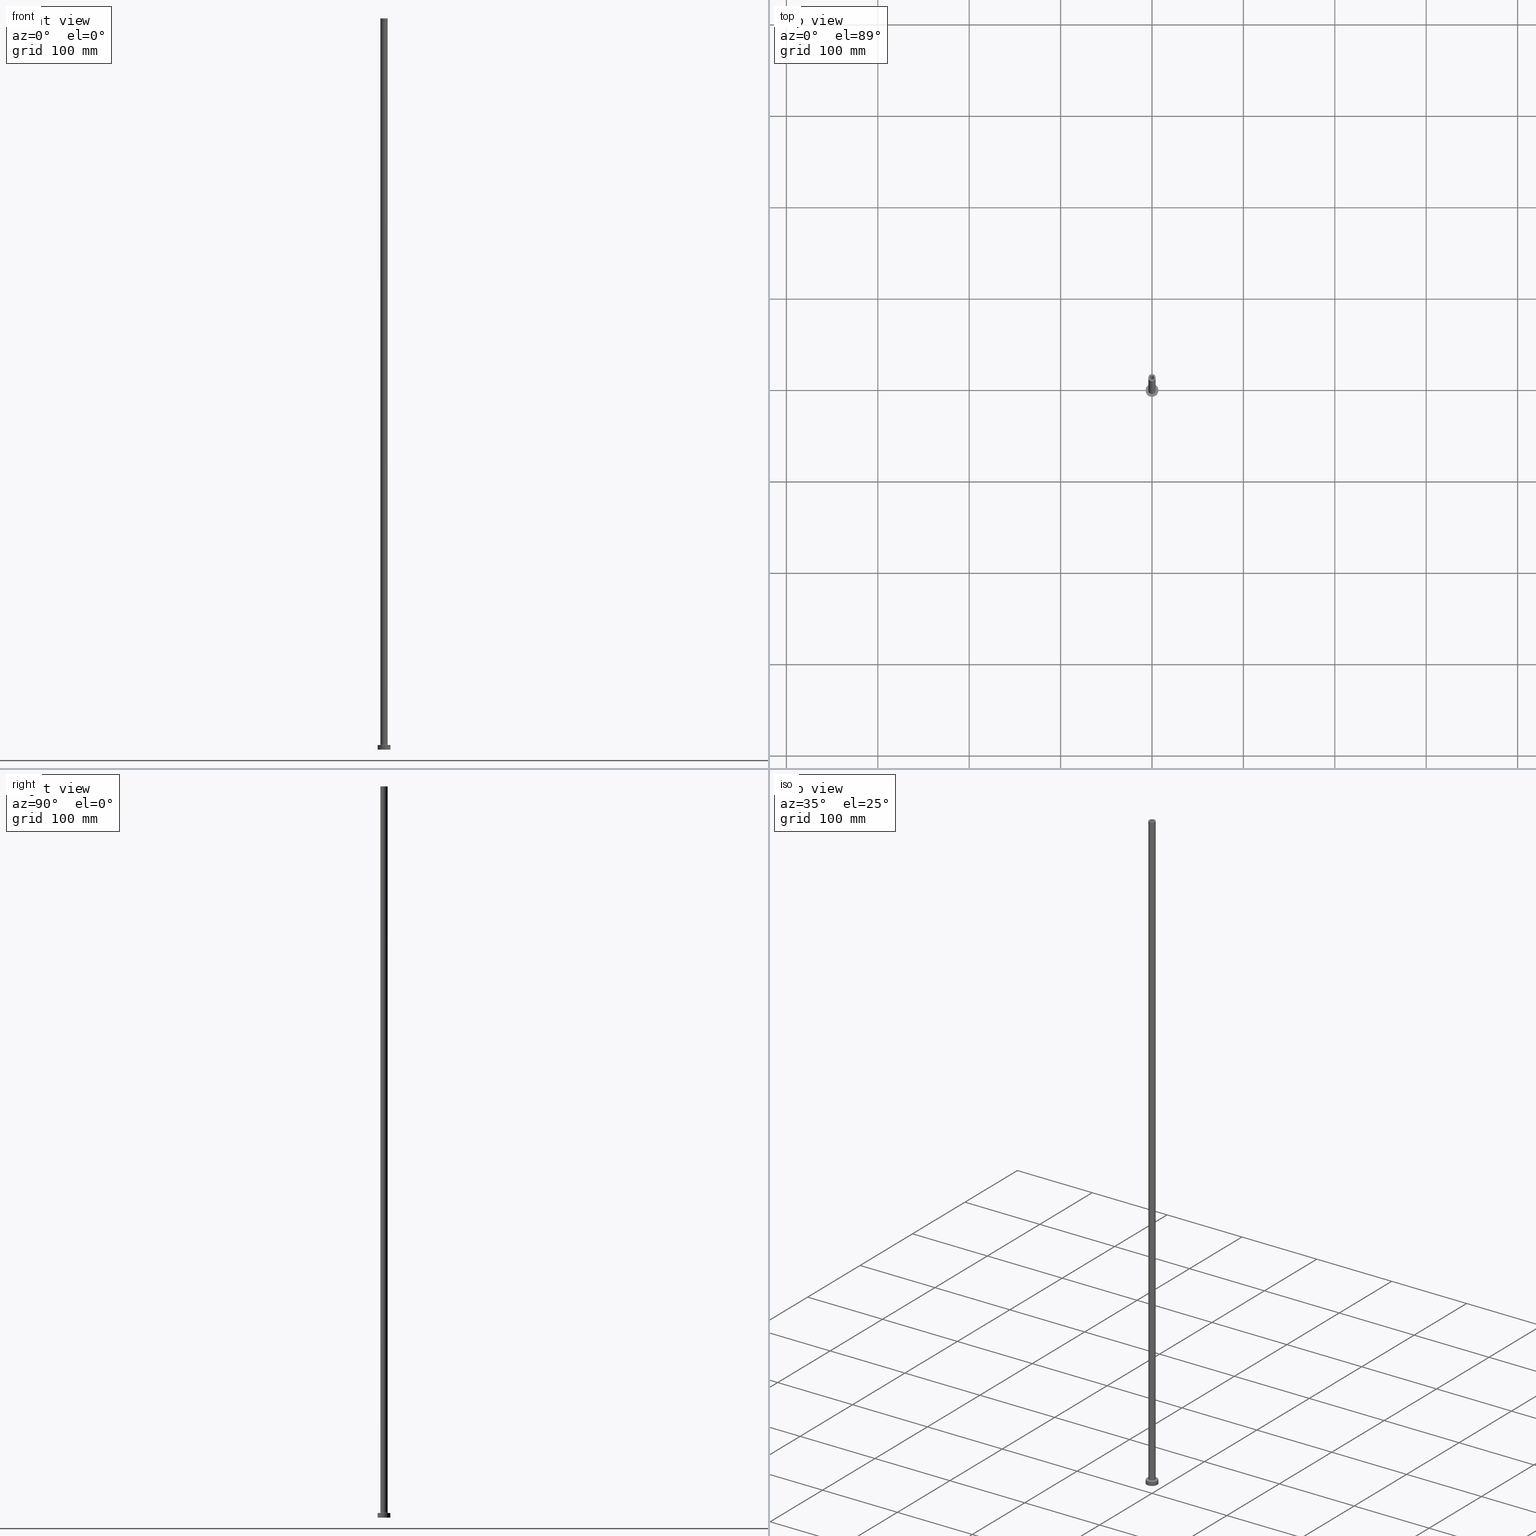
[diagram: canonical four-view strip — front | top / right | iso, engineering-drawing reading convention]
A machine part, canonical four-view strip (front | top / right | iso — engineering-drawing reading convention). The complete STEP part file that produces these views, byte-faithful:
ISO-10303-21;
HEADER;
FILE_DESCRIPTION (( 'STEP AP203' ),
    '1' );
FILE_NAME ('ecbd.STEP',
    '2023-02-13T17:19:08',
    ( '' ),
    ( '' ),
    'SwSTEP 2.0',
    'SolidWorks 2019',
    '' );
FILE_SCHEMA (( 'CONFIG_CONTROL_DESIGN' ));
ENDSEC;

DATA;
#1 = ORIENTED_EDGE ( 'NONE', *, *, #241, .T. ) ;
#2 = CYLINDRICAL_SURFACE ( 'NONE', #187, 4.000000000000000000 ) ;
#3 = CYLINDRICAL_SURFACE ( 'NONE', #51, 2.250000000000000000 ) ;
#4 = DIRECTION ( 'NONE',  ( -0.000000000000000000, -0.000000000000000000, -1.000000000000000000 ) ) ;
#5 = AXIS2_PLACEMENT_3D ( 'NONE', #430, #105, #152 ) ;
#6 = AXIS2_PLACEMENT_3D ( 'NONE', #403, #371, #92 ) ;
#7 = DIRECTION ( 'NONE',  ( -0.000000000000000000, -0.000000000000000000, -1.000000000000000000 ) ) ;
#8 = PRODUCT_DEFINITION_FORMATION_WITH_SPECIFIED_SOURCE ( 'LIBOVOLN�', '', #119, .NOT_KNOWN. ) ;
#9 = EDGE_CURVE ( 'NONE', #126, #253, #351, .T. ) ;
#10 = DIRECTION ( 'NONE',  ( 1.000000000000000000, 0.000000000000000000, 0.000000000000000000 ) ) ;
#11 = CARTESIAN_POINT ( 'NONE',  ( 0.000000000000000000, 0.000000000000000000, 800.0000000000000000 ) ) ;
#12 = ORIENTED_EDGE ( 'NONE', *, *, #332, .T. ) ;
#13 = DIRECTION ( 'NONE',  ( 0.000000000000000000, 0.000000000000000000, -1.000000000000000000 ) ) ;
#14 = CARTESIAN_POINT ( 'NONE',  ( -7.000000000000000000, 0.000000000000000000, 0.000000000000000000 ) ) ;
#15 = VECTOR ( 'NONE', #449, 1000.000000000000000 ) ;
#16 = CC_DESIGN_SECURITY_CLASSIFICATION ( #91, ( #8 ) ) ;
#17 = DIRECTION ( 'NONE',  ( 0.000000000000000000, 0.000000000000000000, 1.000000000000000000 ) ) ;
#18 = CIRCLE ( 'NONE', #413, 2.250000000000000000 ) ;
#19 = DIRECTION ( 'NONE',  ( 1.000000000000000000, 0.000000000000000000, 0.000000000000000000 ) ) ;
#20 = CARTESIAN_POINT ( 'NONE',  ( 0.000000000000000000, 0.000000000000000000, 5.000000000000000000 ) ) ;
#21 = AXIS2_PLACEMENT_3D ( 'NONE', #104, #163, #311 ) ;
#22 = CALENDAR_DATE ( 2023, 13, 2 ) ;
#23 = DIRECTION ( 'NONE',  ( 0.000000000000000000, 0.000000000000000000, 1.000000000000000000 ) ) ;
#24 = DIRECTION ( 'NONE',  ( 1.000000000000000000, 0.000000000000000000, 0.000000000000000000 ) ) ;
#25 = CARTESIAN_POINT ( 'NONE',  ( -4.500000000000000888, 5.510910596163088569E-16, 4.999999999999975131 ) ) ;
#26 = CC_DESIGN_DATE_AND_TIME_ASSIGNMENT ( #399, #84, ( #183 ) ) ;
#27 = DIRECTION ( 'NONE',  ( -0.000000000000000000, -0.000000000000000000, -1.000000000000000000 ) ) ;
#28 = PERSON_AND_ORGANIZATION_ROLE ( 'design_owner' ) ;
#29 = CARTESIAN_POINT ( 'NONE',  ( 2.250000000000000000, 2.755455298081544285E-16, 755.0000000000000000 ) ) ;
#30 = EDGE_LOOP ( 'NONE', ( #141, #349 ) ) ;
#31 = EDGE_CURVE ( 'NONE', #253, #126, #277, .T. ) ;
#32 = CIRCLE ( 'NONE', #199, 4.000000000000000000 ) ;
#33 = AXIS2_PLACEMENT_3D ( 'NONE', #439, #23, #366 ) ;
#34 = DIRECTION ( 'NONE',  ( 0.000000000000000000, 0.000000000000000000, -1.000000000000000000 ) ) ;
#35 = PLANE ( 'NONE',  #384 ) ;
#36 = CARTESIAN_POINT ( 'NONE',  ( 4.000000000000000000, 4.898587196589412829E-16, 5.499999999999949374 ) ) ;
#37 = EDGE_CURVE ( 'NONE', #357, #170, #453, .T. ) ;
#38 = AXIS2_PLACEMENT_3D ( 'NONE', #343, #459, #410 ) ;
#39 = AXIS2_PLACEMENT_3D ( 'NONE', #178, #423, #98 ) ;
#40 = ORIENTED_EDGE ( 'NONE', *, *, #268, .T. ) ;
#41 = EDGE_LOOP ( 'NONE', ( #174, #54, #1, #388 ) ) ;
#42 = DIRECTION ( 'NONE',  ( 1.000000000000000000, 0.000000000000000000, 0.000000000000000000 ) ) ;
#43 = DIRECTION ( 'NONE',  ( 0.000000000000000000, 0.000000000000000000, 1.000000000000000000 ) ) ;
#44 = EDGE_CURVE ( 'NONE', #354, #138, #18, .T. ) ;
#45 = EDGE_LOOP ( 'NONE', ( #244, #234 ) ) ;
#46 = CIRCLE ( 'NONE', #327, 2.250000000000000000 ) ;
#47 = DIRECTION ( 'NONE',  ( 0.000000000000000000, 0.000000000000000000, 1.000000000000000000 ) ) ;
#48 = PLANE ( 'NONE',  #300 ) ;
#49 = DIRECTION ( 'NONE',  ( 1.000000000000000000, 0.000000000000000000, 0.000000000000000000 ) ) ;
#50 = DIRECTION ( 'NONE',  ( -1.000000000000000000, 0.000000000000000000, 0.000000000000000000 ) ) ;
#51 = AXIS2_PLACEMENT_3D ( 'NONE', #127, #34, #286 ) ;
#52 = APPROVAL_STATUS ( 'not_yet_approved' ) ;
#53 = EDGE_CURVE ( 'NONE', #232, #397, #166, .T. ) ;
#54 = ORIENTED_EDGE ( 'NONE', *, *, #167, .T. ) ;
#55 = CIRCLE ( 'NONE', #132, 7.000000000000000000 ) ;
#56 = MECHANICAL_CONTEXT ( 'NONE', #288, 'mechanical' ) ;
#57 = DIRECTION ( 'NONE',  ( 0.000000000000000000, 0.000000000000000000, 1.000000000000000000 ) ) ;
#58 = ORIENTED_EDGE ( 'NONE', *, *, #230, .F. ) ;
#59 = APPROVAL_STATUS ( 'not_yet_approved' ) ;
#60 = PRODUCT_RELATED_PRODUCT_CATEGORY ( 'detail', '', ( #119 ) ) ;
#61 = DIRECTION ( 'NONE',  ( 0.000000000000000000, 0.000000000000000000, 1.000000000000000000 ) ) ;
#62 = AXIS2_PLACEMENT_3D ( 'NONE', #81, #323, #221 ) ;
#63 = APPLICATION_CONTEXT ( 'configuration controlled 3d designs of mechanical parts and assemblies' ) ;
#64 = SHAPE_DEFINITION_REPRESENTATION ( #228, #173 ) ;
#65 = ORIENTED_EDGE ( 'NONE', *, *, #345, .F. ) ;
#66 = ADVANCED_FACE ( 'NONE', ( #415 ), #194, .T. ) ;
#67 = SECURITY_CLASSIFICATION_LEVEL ( 'unclassified' ) ;
#68 = AXIS2_PLACEMENT_3D ( 'NONE', #303, #446, #273 ) ;
#69 = CARTESIAN_POINT ( 'NONE',  ( 0.000000000000000000, 0.000000000000000000, 0.000000000000000000 ) ) ;
#70 = ORIENTED_EDGE ( 'NONE', *, *, #241, .F. ) ;
#71 = DIRECTION ( 'NONE',  ( -0.000000000000000000, -0.000000000000000000, -1.000000000000000000 ) ) ;
#72 = AXIS2_PLACEMENT_3D ( 'NONE', #246, #71, #42 ) ;
#73 = DIRECTION ( 'NONE',  ( -0.000000000000000000, -0.000000000000000000, -1.000000000000000000 ) ) ;
#74 = ORIENTED_EDGE ( 'NONE', *, *, #418, .T. ) ;
#75 = CARTESIAN_POINT ( 'NONE',  ( 4.500000000000000888, 0.000000000000000000, 4.999999999999975131 ) ) ;
#76 = DIRECTION ( 'NONE',  ( 0.000000000000000000, 0.000000000000000000, 1.000000000000000000 ) ) ;
#77 = ORIENTED_EDGE ( 'NONE', *, *, #418, .F. ) ;
#78 = DIRECTION ( 'NONE',  ( 0.000000000000000000, 0.000000000000000000, 1.000000000000000000 ) ) ;
#79 = APPROVAL_PERSON_ORGANIZATION ( #156, #460, #330 ) ;
#80 = CYLINDRICAL_SURFACE ( 'NONE', #123, 2.399999999999999911 ) ;
#81 = CARTESIAN_POINT ( 'NONE',  ( 0.000000000000000000, 0.000000000000000000, 800.0000000000000000 ) ) ;
#82 = ADVANCED_FACE ( 'NONE', ( #209, #346 ), #35, .F. ) ;
#83 = CARTESIAN_POINT ( 'NONE',  ( 0.000000000000000000, 0.000000000000000000, 800.0000000000000000 ) ) ;
#84 = DATE_TIME_ROLE ( 'creation_date' ) ;
#85 = VECTOR ( 'NONE', #263, 1000.000000000000000 ) ;
#86 = CARTESIAN_POINT ( 'NONE',  ( 0.000000000000000000, 0.000000000000000000, 5.499999999999949374 ) ) ;
#87 = ADVANCED_FACE ( 'NONE', ( #135 ), #168, .F. ) ;
#88 = PERSON_AND_ORGANIZATION ( #337, #408 ) ;
#89 = ORIENTED_EDGE ( 'NONE', *, *, #130, .F. ) ;
#90 = DIRECTION ( 'NONE',  ( 0.000000000000000000, 0.000000000000000000, -1.000000000000000000 ) ) ;
#91 = SECURITY_CLASSIFICATION ( '', '', #67 ) ;
#92 = DIRECTION ( 'NONE',  ( 1.000000000000000000, 0.000000000000000000, -0.000000000000000000 ) ) ;
#93 = EDGE_CURVE ( 'NONE', #148, #216, #429, .T. ) ;
#94 = VECTOR ( 'NONE', #184, 1000.000000000000000 ) ;
#95 = CC_DESIGN_APPROVAL ( #460, ( #183 ) ) ;
#96 = CC_DESIGN_PERSON_AND_ORGANIZATION_ASSIGNMENT ( #401, #111, ( #183 ) ) ;
#97 = CARTESIAN_POINT ( 'NONE',  ( -4.000000000000000000, 0.000000000000000000, 800.0000000000000000 ) ) ;
#98 = DIRECTION ( 'NONE',  ( 1.000000000000000000, 0.000000000000000000, 0.000000000000000000 ) ) ;
#99 = ORIENTED_EDGE ( 'NONE', *, *, #167, .F. ) ;
#100 = ADVANCED_FACE ( 'NONE', ( #192 ), #3, .F. ) ;
#101 = CIRCLE ( 'NONE', #207, 0.5000000000000004441 ) ;
#102 = CARTESIAN_POINT ( 'NONE',  ( 0.000000000000000000, 0.000000000000000000, 800.0000000000000000 ) ) ;
#103 = ORIENTED_EDGE ( 'NONE', *, *, #299, .F. ) ;
#104 = CARTESIAN_POINT ( 'NONE',  ( 0.000000000000000000, 0.000000000000000000, 5.000000000000000000 ) ) ;
#105 = DIRECTION ( 'NONE',  ( 0.000000000000000000, 0.000000000000000000, 1.000000000000000000 ) ) ;
#106 = ORIENTED_EDGE ( 'NONE', *, *, #159, .F. ) ;
#107 = CARTESIAN_POINT ( 'NONE',  ( -2.250000000000000000, 0.000000000000000000, 800.0000000000000000 ) ) ;
#108 = CARTESIAN_POINT ( 'NONE',  ( 2.250000000000000000, 2.755455298081544285E-16, 800.0000000000000000 ) ) ;
#109 = EDGE_CURVE ( 'NONE', #339, #307, #267, .T. ) ;
#110 = CARTESIAN_POINT ( 'NONE',  ( 0.000000000000000000, 0.000000000000000000, 761.7882250993909565 ) ) ;
#111 = PERSON_AND_ORGANIZATION_ROLE ( 'creator' ) ;
#112 = ADVANCED_FACE ( 'NONE', ( #256 ), #368, .F. ) ;
#113 = DATE_AND_TIME ( #22, #162 ) ;
#114 = CIRCLE ( 'NONE', #38, 7.000000000000000000 ) ;
#115 = ORIENTED_EDGE ( 'NONE', *, *, #299, .T. ) ;
#116 = CYLINDRICAL_SURFACE ( 'NONE', #276, 2.399999999999999911 ) ;
#117 = ORIENTED_EDGE ( 'NONE', *, *, #31, .T. ) ;
#118 = DIRECTION ( 'NONE',  ( -1.000000000000000000, 0.000000000000000000, 0.000000000000000000 ) ) ;
#119 = PRODUCT ( 'ecbd', 'ecbd', '', ( #56 ) ) ;
#120 = DIRECTION ( 'NONE',  ( -0.000000000000000000, -0.000000000000000000, -1.000000000000000000 ) ) ;
#121 = ORIENTED_EDGE ( 'NONE', *, *, #31, .F. ) ;
#122 = APPROVAL ( #316, 'NEUR�EN�' ) ;
#123 = AXIS2_PLACEMENT_3D ( 'NONE', #110, #13, #222 ) ;
#124 = APPROVAL_PERSON_ORGANIZATION ( #365, #155, #191 ) ;
#125 = DIRECTION ( 'NONE',  ( 1.000000000000000000, 0.000000000000000000, -0.000000000000000000 ) ) ;
#126 = VERTEX_POINT ( 'NONE', #329 ) ;
#127 = CARTESIAN_POINT ( 'NONE',  ( 0.000000000000000000, 0.000000000000000000, 800.0000000000000000 ) ) ;
#128 = ORIENTED_EDGE ( 'NONE', *, *, #374, .F. ) ;
#129 = VERTEX_POINT ( 'NONE', #261 ) ;
#130 = EDGE_CURVE ( 'NONE', #216, #148, #265, .T. ) ;
#131 = COORDINATED_UNIVERSAL_TIME_OFFSET ( 1, 0, .AHEAD. ) ;
#132 = AXIS2_PLACEMENT_3D ( 'NONE', #69, #424, #139 ) ;
#133 = PERSON_AND_ORGANIZATION ( #337, #408 ) ;
#134 = CARTESIAN_POINT ( 'NONE',  ( 0.000000000000000000, 0.000000000000000000, 0.000000000000000000 ) ) ;
#135 = FACE_OUTER_BOUND ( 'NONE', #344, .T. ) ;
#136 = VERTEX_POINT ( 'NONE', #29 ) ;
#137 = DIRECTION ( 'NONE',  ( 0.000000000000000000, -1.000000000000000000, 0.000000000000000000 ) ) ;
#138 = VERTEX_POINT ( 'NONE', #238 ) ;
#139 = DIRECTION ( 'NONE',  ( 1.000000000000000000, 0.000000000000000000, 0.000000000000000000 ) ) ;
#140 = LINE ( 'NONE', #287, #448 ) ;
#141 = ORIENTED_EDGE ( 'NONE', *, *, #44, .F. ) ;
#142 = ADVANCED_FACE ( 'NONE', ( #202, #269 ), #411, .T. ) ;
#143 = DIRECTION ( 'NONE',  ( 1.000000000000000000, 0.000000000000000000, 0.000000000000000000 ) ) ;
#144 = VECTOR ( 'NONE', #260, 1000.000000000000000 ) ;
#145 = LOCAL_TIME ( 18, 19, 8.000000000000000000, #172 ) ;
#146 = EDGE_LOOP ( 'NONE', ( #454, #205, #117, #70 ) ) ;
#147 = DIRECTION ( 'NONE',  ( 0.000000000000000000, 0.000000000000000000, 1.000000000000000000 ) ) ;
#148 = VERTEX_POINT ( 'NONE', #165 ) ;
#149 = FACE_BOUND ( 'NONE', #313, .T. ) ;
#150 = EDGE_CURVE ( 'NONE', #216, #397, #101, .T. ) ;
#151 = CARTESIAN_POINT ( 'NONE',  ( -2.399999999999999911, 0.000000000000000000, 755.0000000000000000 ) ) ;
#152 = DIRECTION ( 'NONE',  ( 1.000000000000000000, 0.000000000000000000, 0.000000000000000000 ) ) ;
#153 = APPLICATION_PROTOCOL_DEFINITION ( 'international standard', 'config_control_design', 1994, #288 ) ;
#154 = AXIS2_PLACEMENT_3D ( 'NONE', #134, #4, #284 ) ;
#155 = APPROVAL ( #52, 'NEUR�EN�' ) ;
#156 = PERSON_AND_ORGANIZATION ( #337, #408 ) ;
#157 =( LENGTH_UNIT ( ) NAMED_UNIT ( * ) SI_UNIT ( .MILLI., .METRE. ) );
#158 = CIRCLE ( 'NONE', #220, 4.500000000000000888 ) ;
#159 = EDGE_CURVE ( 'NONE', #170, #357, #55, .T. ) ;
#160 = DATE_AND_TIME ( #438, #336 ) ;
#161 = CIRCLE ( 'NONE', #5, 2.250000000000000000 ) ;
#162 = LOCAL_TIME ( 18, 19, 8.000000000000000000, #331 ) ;
#163 = DIRECTION ( 'NONE',  ( -0.000000000000000000, -0.000000000000000000, -1.000000000000000000 ) ) ;
#164 = CARTESIAN_POINT ( 'NONE',  ( 0.000000000000000000, 0.000000000000000000, 5.000000000000000000 ) ) ;
#165 = CARTESIAN_POINT ( 'NONE',  ( -4.000000000000000000, 0.000000000000000000, 5.499999999999949374 ) ) ;
#166 = CIRCLE ( 'NONE', #21, 4.500000000000000888 ) ;
#167 = EDGE_CURVE ( 'NONE', #307, #339, #264, .T. ) ;
#168 = TOROIDAL_SURFACE ( 'NONE', #190, 4.500000000000000888, 0.5000000000000000000 ) ;
#169 = ORIENTED_EDGE ( 'NONE', *, *, #317, .T. ) ;
#170 = VERTEX_POINT ( 'NONE', #426 ) ;
#171 = ORIENTED_EDGE ( 'NONE', *, *, #93, .T. ) ;
#172 = COORDINATED_UNIVERSAL_TIME_OFFSET ( 1, 0, .AHEAD. ) ;
#173 = ADVANCED_BREP_SHAPE_REPRESENTATION ( 'ecbd', ( #420, #68 ), #255 ) ;
#174 = ORIENTED_EDGE ( 'NONE', *, *, #198, .F. ) ;
#175 = APPROVAL_ROLE ( '' ) ;
#176 = ADVANCED_FACE ( 'NONE', ( #402 ), #334, .T. ) ;
#177 = DIRECTION ( 'NONE',  ( 1.000000000000000000, 0.000000000000000000, 0.000000000000000000 ) ) ;
#178 = CARTESIAN_POINT ( 'NONE',  ( 0.000000000000000000, 0.000000000000000000, 0.000000000000000000 ) ) ;
#179 = CARTESIAN_POINT ( 'NONE',  ( 0.000000000000000000, 0.000000000000000000, 5.000000000000000000 ) ) ;
#180 = EDGE_LOOP ( 'NONE', ( #128, #58, #428, #203 ) ) ;
#181 = AXIS2_PLACEMENT_3D ( 'NONE', #258, #17, #296 ) ;
#182 = CARTESIAN_POINT ( 'NONE',  ( 2.399999999999999911, 2.939152317953647106E-16, 755.0000000000000000 ) ) ;
#183 = PRODUCT_DEFINITION ( 'NEZN�M�', '', #8, #233 ) ;
#184 = DIRECTION ( 'NONE',  ( 0.000000000000000000, 0.000000000000000000, -1.000000000000000000 ) ) ;
#185 = VERTEX_POINT ( 'NONE', #275 ) ;
#186 = FACE_BOUND ( 'NONE', #197, .T. ) ;
#187 = AXIS2_PLACEMENT_3D ( 'NONE', #102, #7, #50 ) ;
#188 = LINE ( 'NONE', #108, #94 ) ;
#189 = CARTESIAN_POINT ( 'NONE',  ( 2.399999999999999911, 2.939152317953647106E-16, 761.7882250993909565 ) ) ;
#190 = AXIS2_PLACEMENT_3D ( 'NONE', #86, #76, #19 ) ;
#191 = APPROVAL_ROLE ( '' ) ;
#192 = FACE_OUTER_BOUND ( 'NONE', #434, .T. ) ;
#193 = FACE_OUTER_BOUND ( 'NONE', #41, .T. ) ;
#194 = CYLINDRICAL_SURFACE ( 'NONE', #431, 7.000000000000000000 ) ;
#195 = AXIS2_PLACEMENT_3D ( 'NONE', #359, #147, #435 ) ;
#196 = ADVANCED_FACE ( 'NONE', ( #200 ), #235, .T. ) ;
#197 = EDGE_LOOP ( 'NONE', ( #74, #425 ) ) ;
#198 = EDGE_CURVE ( 'NONE', #307, #253, #224, .T. ) ;
#199 = AXIS2_PLACEMENT_3D ( 'NONE', #11, #217, #355 ) ;
#200 = FACE_OUTER_BOUND ( 'NONE', #249, .T. ) ;
#201 = LINE ( 'NONE', #97, #15 ) ;
#202 = FACE_BOUND ( 'NONE', #30, .T. ) ;
#203 = ORIENTED_EDGE ( 'NONE', *, *, #37, .T. ) ;
#204 = DIRECTION ( 'NONE',  ( -1.000000000000000000, 0.000000000000000000, 0.000000000000000000 ) ) ;
#205 = ORIENTED_EDGE ( 'NONE', *, *, #198, .T. ) ;
#206 = VERTEX_POINT ( 'NONE', #358 ) ;
#207 = AXIS2_PLACEMENT_3D ( 'NONE', #461, #137, #285 ) ;
#208 = CC_DESIGN_APPROVAL ( #122, ( #91 ) ) ;
#209 = FACE_BOUND ( 'NONE', #321, .T. ) ;
#210 = CARTESIAN_POINT ( 'NONE',  ( 0.000000000000000000, 0.000000000000000000, 755.0000000000000000 ) ) ;
#211 = EDGE_LOOP ( 'NONE', ( #412, #89, #229, #237 ) ) ;
#212 = EDGE_LOOP ( 'NONE', ( #347, #417 ) ) ;
#213 = DIRECTION ( 'NONE',  ( 1.000000000000000000, 0.000000000000000000, -0.000000000000000000 ) ) ;
#214 = EDGE_LOOP ( 'NONE', ( #259, #106 ) ) ;
#215 = CARTESIAN_POINT ( 'NONE',  ( 0.000000000000000000, 0.000000000000000000, 5.000000000000000000 ) ) ;
#216 = VERTEX_POINT ( 'NONE', #36 ) ;
#217 = DIRECTION ( 'NONE',  ( 0.000000000000000000, 0.000000000000000000, 1.000000000000000000 ) ) ;
#218 = CC_DESIGN_PERSON_AND_ORGANIZATION_ASSIGNMENT ( #338, #28, ( #119 ) ) ;
#219 = ORIENTED_EDGE ( 'NONE', *, *, #360, .T. ) ;
#220 = AXIS2_PLACEMENT_3D ( 'NONE', #20, #442, #24 ) ;
#221 = DIRECTION ( 'NONE',  ( 1.000000000000000000, 0.000000000000000000, 0.000000000000000000 ) ) ;
#222 = DIRECTION ( 'NONE',  ( -1.000000000000000000, 0.000000000000000000, 0.000000000000000000 ) ) ;
#223 = DIRECTION ( 'NONE',  ( -1.000000000000000000, 0.000000000000000000, 0.000000000000000000 ) ) ;
#224 = LINE ( 'NONE', #189, #85 ) ;
#225 = EDGE_CURVE ( 'NONE', #185, #148, #201, .T. ) ;
#226 = CIRCLE ( 'NONE', #356, 7.000000000000000000 ) ;
#227 = PERSON_AND_ORGANIZATION_ROLE ( 'creator' ) ;
#228 = PRODUCT_DEFINITION_SHAPE ( 'NONE', 'NONE',  #183 ) ;
#229 = ORIENTED_EDGE ( 'NONE', *, *, #150, .T. ) ;
#230 = EDGE_CURVE ( 'NONE', #206, #129, #114, .T. ) ;
#231 = DIRECTION ( 'NONE',  ( -0.000000000000000000, -0.000000000000000000, -1.000000000000000000 ) ) ;
#232 = VERTEX_POINT ( 'NONE', #25 ) ;
#233 = DESIGN_CONTEXT ( 'detailed design', #63, 'design' ) ;
#234 = ORIENTED_EDGE ( 'NONE', *, *, #283, .T. ) ;
#235 = CYLINDRICAL_SURFACE ( 'NONE', #436, 7.000000000000000000 ) ;
#236 = CC_DESIGN_DATE_AND_TIME_ASSIGNMENT ( #377, #314, ( #91 ) ) ;
#237 = ORIENTED_EDGE ( 'NONE', *, *, #53, .F. ) ;
#238 = CARTESIAN_POINT ( 'NONE',  ( 2.250000000000000000, 2.755455298081544285E-16, 800.0000000000000000 ) ) ;
#239 = ORIENTED_EDGE ( 'NONE', *, *, #150, .F. ) ;
#240 = DIRECTION ( 'NONE',  ( 0.000000000000000000, 0.000000000000000000, -1.000000000000000000 ) ) ;
#241 = EDGE_CURVE ( 'NONE', #339, #126, #247, .T. ) ;
#242 = CARTESIAN_POINT ( 'NONE',  ( 0.000000000000000000, 0.000000000000000000, 800.0000000000000000 ) ) ;
#243 = PERSON_AND_ORGANIZATION ( #337, #408 ) ;
#244 = ORIENTED_EDGE ( 'NONE', *, *, #398, .T. ) ;
#245 = CIRCLE ( 'NONE', #308, 0.5000000000000004441 ) ;
#246 = CARTESIAN_POINT ( 'NONE',  ( 0.000000000000000000, 0.000000000000000000, 0.000000000000000000 ) ) ;
#247 = LINE ( 'NONE', #281, #407 ) ;
#248 = LINE ( 'NONE', #322, #144 ) ;
#249 = EDGE_LOOP ( 'NONE', ( #450, #381, #278, #270 ) ) ;
#250 = EDGE_CURVE ( 'NONE', #452, #136, #46, .T. ) ;
#251 = VERTEX_POINT ( 'NONE', #294 ) ;
#252 = FACE_OUTER_BOUND ( 'NONE', #212, .T. ) ;
#253 = VERTEX_POINT ( 'NONE', #254 ) ;
#254 = CARTESIAN_POINT ( 'NONE',  ( 2.399999999999999911, 2.939152317953647106E-16, 0.000000000000000000 ) ) ;
#255 =( GEOMETRIC_REPRESENTATION_CONTEXT ( 3 ) GLOBAL_UNCERTAINTY_ASSIGNED_CONTEXT ( ( #305 ) ) GLOBAL_UNIT_ASSIGNED_CONTEXT ( ( #157, #302, #409 ) ) REPRESENTATION_CONTEXT ( 'NONE', 'WORKASPACE' ) );
#256 = FACE_OUTER_BOUND ( 'NONE', #211, .T. ) ;
#257 = LINE ( 'NONE', #107, #400 ) ;
#258 = CARTESIAN_POINT ( 'NONE',  ( 0.000000000000000000, 0.000000000000000000, 5.499999999999949374 ) ) ;
#259 = ORIENTED_EDGE ( 'NONE', *, *, #37, .F. ) ;
#260 = DIRECTION ( 'NONE',  ( -0.000000000000000000, -0.000000000000000000, -1.000000000000000000 ) ) ;
#261 = CARTESIAN_POINT ( 'NONE',  ( 7.000000000000000000, 8.572527594031473190E-16, 5.000000000000000000 ) ) ;
#262 = CALENDAR_DATE ( 2023, 13, 2 ) ;
#263 = DIRECTION ( 'NONE',  ( 0.000000000000000000, 0.000000000000000000, -1.000000000000000000 ) ) ;
#264 = CIRCLE ( 'NONE', #393, 2.399999999999999911 ) ;
#265 = CIRCLE ( 'NONE', #379, 4.000000000000000000 ) ;
#266 = APPROVAL_DATE_TIME ( #113, #155 ) ;
#267 = CIRCLE ( 'NONE', #320, 2.399999999999999911 ) ;
#268 = EDGE_CURVE ( 'NONE', #138, #354, #274, .T. ) ;
#269 = FACE_OUTER_BOUND ( 'NONE', #45, .T. ) ;
#270 = ORIENTED_EDGE ( 'NONE', *, *, #445, .F. ) ;
#271 = DIRECTION ( 'NONE',  ( -1.000000000000000000, 0.000000000000000000, 0.000000000000000000 ) ) ;
#272 = ORIENTED_EDGE ( 'NONE', *, *, #345, .T. ) ;
#273 = DIRECTION ( 'NONE',  ( 1.000000000000000000, 0.000000000000000000, 0.000000000000000000 ) ) ;
#274 = CIRCLE ( 'NONE', #62, 2.250000000000000000 ) ;
#275 = CARTESIAN_POINT ( 'NONE',  ( -4.000000000000000000, 0.000000000000000000, 800.0000000000000000 ) ) ;
#276 = AXIS2_PLACEMENT_3D ( 'NONE', #367, #90, #118 ) ;
#277 = CIRCLE ( 'NONE', #154, 2.399999999999999911 ) ;
#278 = ORIENTED_EDGE ( 'NONE', *, *, #159, .T. ) ;
#279 = ORIENTED_EDGE ( 'NONE', *, *, #283, .F. ) ;
#280 = PERSON_AND_ORGANIZATION ( #337, #408 ) ;
#281 = CARTESIAN_POINT ( 'NONE',  ( -2.399999999999999911, 0.000000000000000000, 761.7882250993909565 ) ) ;
#282 = AXIS2_PLACEMENT_3D ( 'NONE', #372, #61, #125 ) ;
#283 = EDGE_CURVE ( 'NONE', #251, #185, #441, .T. ) ;
#284 = DIRECTION ( 'NONE',  ( 1.000000000000000000, 0.000000000000000000, 0.000000000000000000 ) ) ;
#285 = DIRECTION ( 'NONE',  ( 0.000000000000000000, 0.000000000000000000, -1.000000000000000000 ) ) ;
#286 = DIRECTION ( 'NONE',  ( -1.000000000000000000, 0.000000000000000000, 0.000000000000000000 ) ) ;
#287 = CARTESIAN_POINT ( 'NONE',  ( 7.000000000000000000, 8.572527594031473190E-16, 5.000000000000000000 ) ) ;
#288 = APPLICATION_CONTEXT ( 'configuration controlled 3d designs of mechanical parts and assemblies' ) ;
#289 = ADVANCED_FACE ( 'NONE', ( #186, #252 ), #48, .T. ) ;
#290 = DIRECTION ( 'NONE',  ( 0.000000000000000000, 0.000000000000000000, 1.000000000000000000 ) ) ;
#291 = ORIENTED_EDGE ( 'NONE', *, *, #250, .F. ) ;
#292 = FACE_OUTER_BOUND ( 'NONE', #378, .T. ) ;
#293 = ORIENTED_EDGE ( 'NONE', *, *, #225, .T. ) ;
#294 = CARTESIAN_POINT ( 'NONE',  ( 4.000000000000000000, 4.898587196589412829E-16, 800.0000000000000000 ) ) ;
#295 = FACE_OUTER_BOUND ( 'NONE', #386, .T. ) ;
#296 = DIRECTION ( 'NONE',  ( 1.000000000000000000, 0.000000000000000000, 0.000000000000000000 ) ) ;
#297 = COORDINATED_UNIVERSAL_TIME_OFFSET ( 1, 0, .AHEAD. ) ;
#298 = COORDINATED_UNIVERSAL_TIME_OFFSET ( 1, 0, .AHEAD. ) ;
#299 = EDGE_CURVE ( 'NONE', #138, #136, #188, .T. ) ;
#300 = AXIS2_PLACEMENT_3D ( 'NONE', #179, #47, #427 ) ;
#301 = VECTOR ( 'NONE', #231, 1000.000000000000000 ) ;
#302 =( NAMED_UNIT ( * ) PLANE_ANGLE_UNIT ( ) SI_UNIT ( $, .RADIAN. ) );
#303 = CARTESIAN_POINT ( 'NONE',  ( 0.000000000000000000, 0.000000000000000000, 0.000000000000000000 ) ) ;
#304 = CARTESIAN_POINT ( 'NONE',  ( 0.000000000000000000, 0.000000000000000000, 5.499999999999949374 ) ) ;
#305 = UNCERTAINTY_MEASURE_WITH_UNIT (LENGTH_MEASURE( 1.000000000000000082E-05 ), #157, 'distance_accuracy_value', 'NONE');
#306 = CARTESIAN_POINT ( 'NONE',  ( -7.000000000000000000, 0.000000000000000000, 5.000000000000000000 ) ) ;
#307 = VERTEX_POINT ( 'NONE', #182 ) ;
#308 = AXIS2_PLACEMENT_3D ( 'NONE', #391, #319, #326 ) ;
#309 = DIRECTION ( 'NONE',  ( 1.000000000000000000, 0.000000000000000000, 0.000000000000000000 ) ) ;
#310 = ADVANCED_FACE ( 'NONE', ( #385 ), #80, .F. ) ;
#311 = DIRECTION ( 'NONE',  ( 1.000000000000000000, 0.000000000000000000, 0.000000000000000000 ) ) ;
#312 = DIRECTION ( 'NONE',  ( -0.000000000000000000, -0.000000000000000000, -1.000000000000000000 ) ) ;
#313 = EDGE_LOOP ( 'NONE', ( #456, #219 ) ) ;
#314 = DATE_TIME_ROLE ( 'classification_date' ) ;
#315 = CC_DESIGN_PERSON_AND_ORGANIZATION_ASSIGNMENT ( #243, #455, ( #91 ) ) ;
#316 = APPROVAL_STATUS ( 'not_yet_approved' ) ;
#317 = EDGE_CURVE ( 'NONE', #251, #216, #248, .T. ) ;
#318 = DIRECTION ( 'NONE',  ( 0.000000000000000000, 0.000000000000000000, 1.000000000000000000 ) ) ;
#319 = DIRECTION ( 'NONE',  ( 1.224646799147353207E-16, 1.000000000000000000, -0.000000000000000000 ) ) ;
#320 = AXIS2_PLACEMENT_3D ( 'NONE', #382, #78, #10 ) ;
#321 = EDGE_LOOP ( 'NONE', ( #352, #121 ) ) ;
#322 = CARTESIAN_POINT ( 'NONE',  ( 4.000000000000000000, 4.898587196589412829E-16, 800.0000000000000000 ) ) ;
#323 = DIRECTION ( 'NONE',  ( 0.000000000000000000, 0.000000000000000000, 1.000000000000000000 ) ) ;
#324 = CC_DESIGN_PERSON_AND_ORGANIZATION_ASSIGNMENT ( #133, #342, ( #8 ) ) ;
#325 = ORIENTED_EDGE ( 'NONE', *, *, #44, .T. ) ;
#326 = DIRECTION ( 'NONE',  ( -1.000000000000000000, 1.224646799147351482E-16, 0.000000000000000000 ) ) ;
#327 = AXIS2_PLACEMENT_3D ( 'NONE', #361, #43, #49 ) ;
#328 = CC_DESIGN_APPROVAL ( #155, ( #8 ) ) ;
#329 = CARTESIAN_POINT ( 'NONE',  ( -2.399999999999999911, 0.000000000000000000, 0.000000000000000000 ) ) ;
#330 = APPROVAL_ROLE ( '' ) ;
#331 = COORDINATED_UNIVERSAL_TIME_OFFSET ( 1, 0, .AHEAD. ) ;
#332 = EDGE_CURVE ( 'NONE', #148, #232, #245, .T. ) ;
#333 = LINE ( 'NONE', #306, #301 ) ;
#334 = CYLINDRICAL_SURFACE ( 'NONE', #363, 4.000000000000000000 ) ;
#335 = EDGE_LOOP ( 'NONE', ( #279, #169, #451, #416 ) ) ;
#336 = LOCAL_TIME ( 18, 19, 8.000000000000000000, #297 ) ;
#337 = PERSON ( 'NEUR�EN�', 'NEUR�EN�', 'NEUR�EN�', ('NEUR�EN�'), ('NEUR�EN�'), ('NEUR�EN�') ) ;
#338 = PERSON_AND_ORGANIZATION ( #337, #408 ) ;
#339 = VERTEX_POINT ( 'NONE', #151 ) ;
#340 = CALENDAR_DATE ( 2023, 13, 2 ) ;
#341 = ORIENTED_EDGE ( 'NONE', *, *, #109, .F. ) ;
#342 = PERSON_AND_ORGANIZATION_ROLE ( 'design_supplier' ) ;
#343 = CARTESIAN_POINT ( 'NONE',  ( 0.000000000000000000, 0.000000000000000000, 5.000000000000000000 ) ) ;
#344 = EDGE_LOOP ( 'NONE', ( #390, #12, #77, #239 ) ) ;
#345 = EDGE_CURVE ( 'NONE', #354, #452, #257, .T. ) ;
#346 = FACE_OUTER_BOUND ( 'NONE', #214, .T. ) ;
#347 = ORIENTED_EDGE ( 'NONE', *, *, #230, .T. ) ;
#348 = CARTESIAN_POINT ( 'NONE',  ( 0.000000000000000000, 0.000000000000000000, 0.000000000000000000 ) ) ;
#349 = ORIENTED_EDGE ( 'NONE', *, *, #268, .F. ) ;
#350 = DIRECTION ( 'NONE',  ( 0.000000000000000000, 0.000000000000000000, 1.000000000000000000 ) ) ;
#351 = CIRCLE ( 'NONE', #72, 2.399999999999999911 ) ;
#352 = ORIENTED_EDGE ( 'NONE', *, *, #9, .F. ) ;
#353 = DIRECTION ( 'NONE',  ( 1.000000000000000000, 0.000000000000000000, 0.000000000000000000 ) ) ;
#354 = VERTEX_POINT ( 'NONE', #396 ) ;
#355 = DIRECTION ( 'NONE',  ( 1.000000000000000000, 0.000000000000000000, 0.000000000000000000 ) ) ;
#356 = AXIS2_PLACEMENT_3D ( 'NONE', #215, #290, #353 ) ;
#357 = VERTEX_POINT ( 'NONE', #14 ) ;
#358 = CARTESIAN_POINT ( 'NONE',  ( -7.000000000000000000, 0.000000000000000000, 5.000000000000000000 ) ) ;
#359 = CARTESIAN_POINT ( 'NONE',  ( 0.000000000000000000, 0.000000000000000000, 800.0000000000000000 ) ) ;
#360 = EDGE_CURVE ( 'NONE', #136, #452, #161, .T. ) ;
#361 = CARTESIAN_POINT ( 'NONE',  ( 0.000000000000000000, 0.000000000000000000, 755.0000000000000000 ) ) ;
#362 = FACE_OUTER_BOUND ( 'NONE', #335, .T. ) ;
#363 = AXIS2_PLACEMENT_3D ( 'NONE', #443, #120, #369 ) ;
#364 = ADVANCED_FACE ( 'NONE', ( #295 ), #437, .F. ) ;
#365 = PERSON_AND_ORGANIZATION ( #337, #408 ) ;
#366 = DIRECTION ( 'NONE',  ( 1.000000000000000000, 0.000000000000000000, 0.000000000000000000 ) ) ;
#367 = CARTESIAN_POINT ( 'NONE',  ( 0.000000000000000000, 0.000000000000000000, 761.7882250993909565 ) ) ;
#368 = TOROIDAL_SURFACE ( 'NONE', #181, 4.500000000000000888, 0.5000000000000000000 ) ;
#369 = DIRECTION ( 'NONE',  ( -1.000000000000000000, 0.000000000000000000, 0.000000000000000000 ) ) ;
#370 = ADVANCED_FACE ( 'NONE', ( #362 ), #2, .T. ) ;
#371 = DIRECTION ( 'NONE',  ( 0.000000000000000000, 0.000000000000000000, 1.000000000000000000 ) ) ;
#372 = CARTESIAN_POINT ( 'NONE',  ( 0.000000000000000000, 0.000000000000000000, 800.0000000000000000 ) ) ;
#373 = CALENDAR_DATE ( 2023, 13, 2 ) ;
#374 = EDGE_CURVE ( 'NONE', #129, #170, #140, .T. ) ;
#375 = ORIENTED_EDGE ( 'NONE', *, *, #317, .F. ) ;
#376 = CLOSED_SHELL ( 'NONE', ( #364, #310, #87, #370, #196, #66, #289, #82, #176, #142, #112, #432, #406, #100 ) ) ;
#377 = DATE_AND_TIME ( #340, #145 ) ;
#378 = EDGE_LOOP ( 'NONE', ( #341, #99 ) ) ;
#379 = AXIS2_PLACEMENT_3D ( 'NONE', #304, #57, #309 ) ;
#380 = LOCAL_TIME ( 18, 19, 8.000000000000000000, #298 ) ;
#381 = ORIENTED_EDGE ( 'NONE', *, *, #374, .T. ) ;
#382 = CARTESIAN_POINT ( 'NONE',  ( 0.000000000000000000, 0.000000000000000000, 755.0000000000000000 ) ) ;
#383 = EDGE_CURVE ( 'NONE', #129, #206, #226, .T. ) ;
#384 = AXIS2_PLACEMENT_3D ( 'NONE', #348, #457, #213 ) ;
#385 = FACE_OUTER_BOUND ( 'NONE', #146, .T. ) ;
#386 = EDGE_LOOP ( 'NONE', ( #325, #115, #291, #65 ) ) ;
#387 = ORIENTED_EDGE ( 'NONE', *, *, #360, .F. ) ;
#388 = ORIENTED_EDGE ( 'NONE', *, *, #9, .T. ) ;
#389 = DIRECTION ( 'NONE',  ( 0.000000000000000000, 0.000000000000000000, -1.000000000000000000 ) ) ;
#390 = ORIENTED_EDGE ( 'NONE', *, *, #93, .F. ) ;
#391 = CARTESIAN_POINT ( 'NONE',  ( -4.500000000000000888, 5.510910596163089556E-16, 5.499999999999949374 ) ) ;
#392 = CC_DESIGN_PERSON_AND_ORGANIZATION_ASSIGNMENT ( #88, #227, ( #8 ) ) ;
#393 = AXIS2_PLACEMENT_3D ( 'NONE', #210, #350, #177 ) ;
#394 = APPROVAL_PERSON_ORGANIZATION ( #280, #122, #175 ) ;
#395 = DIRECTION ( 'NONE',  ( 0.000000000000000000, 0.000000000000000000, -1.000000000000000000 ) ) ;
#396 = CARTESIAN_POINT ( 'NONE',  ( -2.250000000000000000, 0.000000000000000000, 800.0000000000000000 ) ) ;
#397 = VERTEX_POINT ( 'NONE', #75 ) ;
#398 = EDGE_CURVE ( 'NONE', #185, #251, #32, .T. ) ;
#399 = DATE_AND_TIME ( #262, #380 ) ;
#400 = VECTOR ( 'NONE', #395, 1000.000000000000000 ) ;
#401 = PERSON_AND_ORGANIZATION ( #337, #408 ) ;
#402 = FACE_OUTER_BOUND ( 'NONE', #444, .T. ) ;
#403 = CARTESIAN_POINT ( 'NONE',  ( 0.000000000000000000, 0.000000000000000000, 755.0000000000000000 ) ) ;
#404 = CARTESIAN_POINT ( 'NONE',  ( 0.000000000000000000, 0.000000000000000000, 5.000000000000000000 ) ) ;
#405 = CARTESIAN_POINT ( 'NONE',  ( -2.250000000000000000, 0.000000000000000000, 755.0000000000000000 ) ) ;
#406 = ADVANCED_FACE ( 'NONE', ( #149, #292 ), #433, .F. ) ;
#407 = VECTOR ( 'NONE', #240, 1000.000000000000000 ) ;
#408 = ORGANIZATION ( 'NEUR�EN�', 'NEUR�EN�', '' ) ;
#409 =( NAMED_UNIT ( * ) SI_UNIT ( $, .STERADIAN. ) SOLID_ANGLE_UNIT ( ) );
#410 = DIRECTION ( 'NONE',  ( 1.000000000000000000, 0.000000000000000000, 0.000000000000000000 ) ) ;
#411 = PLANE ( 'NONE',  #282 ) ;
#412 = ORIENTED_EDGE ( 'NONE', *, *, #332, .F. ) ;
#413 = AXIS2_PLACEMENT_3D ( 'NONE', #242, #318, #143 ) ;
#414 = ORIENTED_EDGE ( 'NONE', *, *, #398, .F. ) ;
#415 = FACE_OUTER_BOUND ( 'NONE', #180, .T. ) ;
#416 = ORIENTED_EDGE ( 'NONE', *, *, #225, .F. ) ;
#417 = ORIENTED_EDGE ( 'NONE', *, *, #383, .T. ) ;
#418 = EDGE_CURVE ( 'NONE', #397, #232, #158, .T. ) ;
#419 = DATE_AND_TIME ( #373, #422 ) ;
#420 = MANIFOLD_SOLID_BREP ( 'Odebrat vysunut�m4', #376 ) ;
#421 = AXIS2_PLACEMENT_3D ( 'NONE', #83, #389, #223 ) ;
#422 = LOCAL_TIME ( 18, 19, 8.000000000000000000, #131 ) ;
#423 = DIRECTION ( 'NONE',  ( 0.000000000000000000, 0.000000000000000000, 1.000000000000000000 ) ) ;
#424 = DIRECTION ( 'NONE',  ( 0.000000000000000000, 0.000000000000000000, 1.000000000000000000 ) ) ;
#425 = ORIENTED_EDGE ( 'NONE', *, *, #53, .T. ) ;
#426 = CARTESIAN_POINT ( 'NONE',  ( 7.000000000000000000, 8.572527594031473190E-16, 0.000000000000000000 ) ) ;
#427 = DIRECTION ( 'NONE',  ( 1.000000000000000000, 0.000000000000000000, -0.000000000000000000 ) ) ;
#428 = ORIENTED_EDGE ( 'NONE', *, *, #445, .T. ) ;
#429 = CIRCLE ( 'NONE', #33, 4.000000000000000000 ) ;
#430 = CARTESIAN_POINT ( 'NONE',  ( 0.000000000000000000, 0.000000000000000000, 755.0000000000000000 ) ) ;
#431 = AXIS2_PLACEMENT_3D ( 'NONE', #404, #27, #204 ) ;
#432 = ADVANCED_FACE ( 'NONE', ( #193 ), #116, .F. ) ;
#433 = PLANE ( 'NONE',  #6 ) ;
#434 = EDGE_LOOP ( 'NONE', ( #103, #40, #272, #387 ) ) ;
#435 = DIRECTION ( 'NONE',  ( 1.000000000000000000, 0.000000000000000000, 0.000000000000000000 ) ) ;
#436 = AXIS2_PLACEMENT_3D ( 'NONE', #164, #312, #271 ) ;
#437 = CYLINDRICAL_SURFACE ( 'NONE', #421, 2.250000000000000000 ) ;
#438 = CALENDAR_DATE ( 2023, 13, 2 ) ;
#439 = CARTESIAN_POINT ( 'NONE',  ( 0.000000000000000000, 0.000000000000000000, 5.499999999999949374 ) ) ;
#440 = APPLICATION_PROTOCOL_DEFINITION ( 'international standard', 'config_control_design', 1994, #63 ) ;
#441 = CIRCLE ( 'NONE', #195, 4.000000000000000000 ) ;
#442 = DIRECTION ( 'NONE',  ( -0.000000000000000000, -0.000000000000000000, -1.000000000000000000 ) ) ;
#443 = CARTESIAN_POINT ( 'NONE',  ( 0.000000000000000000, 0.000000000000000000, 800.0000000000000000 ) ) ;
#444 = EDGE_LOOP ( 'NONE', ( #375, #414, #293, #171 ) ) ;
#445 = EDGE_CURVE ( 'NONE', #206, #357, #333, .T. ) ;
#446 = DIRECTION ( 'NONE',  ( 0.000000000000000000, 0.000000000000000000, 1.000000000000000000 ) ) ;
#447 = APPROVAL_DATE_TIME ( #160, #460 ) ;
#448 = VECTOR ( 'NONE', #73, 1000.000000000000000 ) ;
#449 = DIRECTION ( 'NONE',  ( -0.000000000000000000, -0.000000000000000000, -1.000000000000000000 ) ) ;
#450 = ORIENTED_EDGE ( 'NONE', *, *, #383, .F. ) ;
#451 = ORIENTED_EDGE ( 'NONE', *, *, #130, .T. ) ;
#452 = VERTEX_POINT ( 'NONE', #405 ) ;
#453 = CIRCLE ( 'NONE', #39, 7.000000000000000000 ) ;
#454 = ORIENTED_EDGE ( 'NONE', *, *, #109, .T. ) ;
#455 = PERSON_AND_ORGANIZATION_ROLE ( 'classification_officer' ) ;
#456 = ORIENTED_EDGE ( 'NONE', *, *, #250, .T. ) ;
#457 = DIRECTION ( 'NONE',  ( 0.000000000000000000, 0.000000000000000000, 1.000000000000000000 ) ) ;
#458 = APPROVAL_DATE_TIME ( #419, #122 ) ;
#459 = DIRECTION ( 'NONE',  ( 0.000000000000000000, 0.000000000000000000, 1.000000000000000000 ) ) ;
#460 = APPROVAL ( #59, 'NEUR�EN�' ) ;
#461 = CARTESIAN_POINT ( 'NONE',  ( 4.500000000000000888, 0.000000000000000000, 5.499999999999949374 ) ) ;
ENDSEC;
END-ISO-10303-21;
